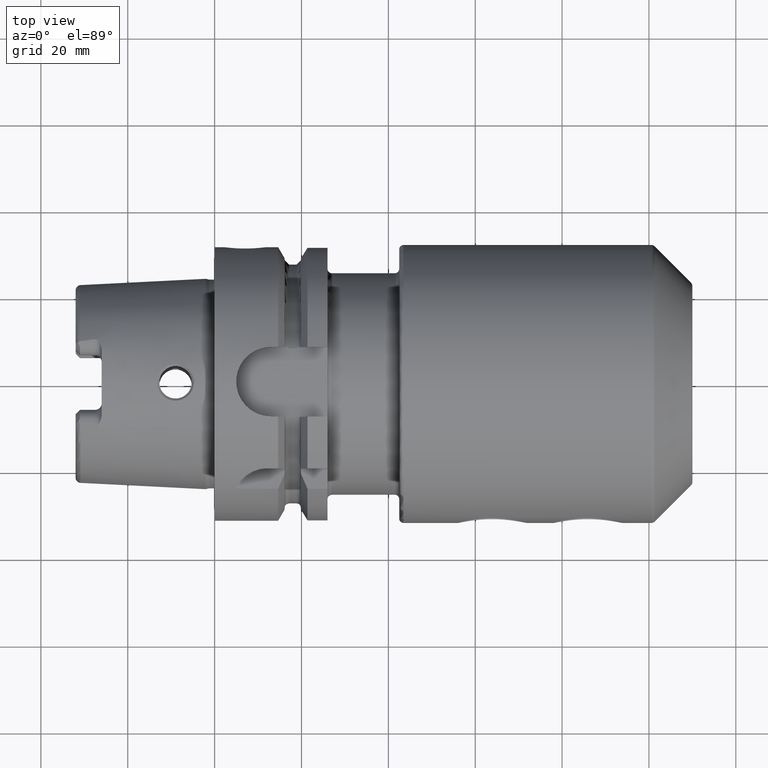
[diagram: clean part render]
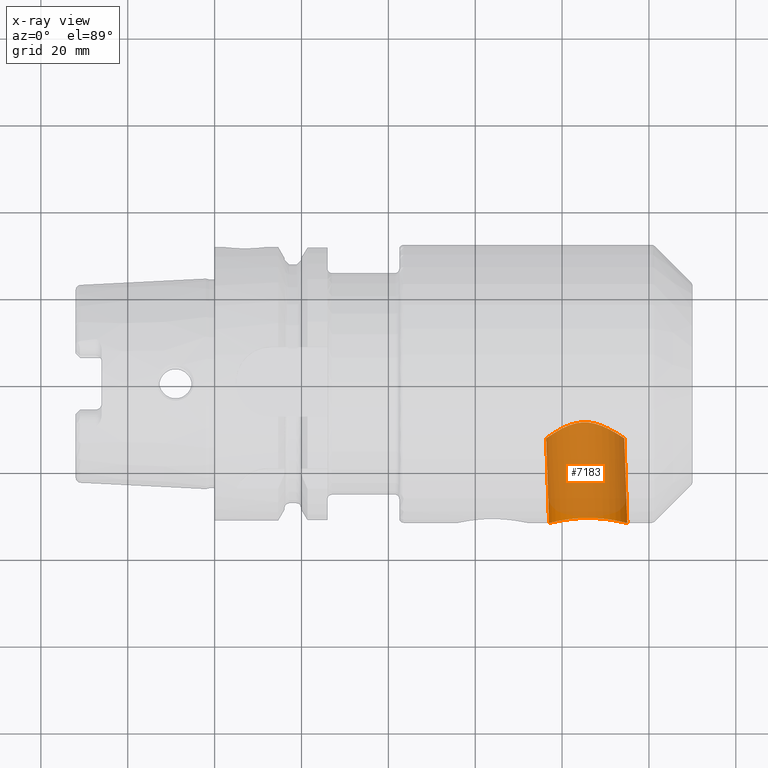
[diagram: x-ray — body ghosted, one internal face saturated and labeled with its STEP entity id]
A machine part, top view, then the same camera in x-ray: the body is ghosted and one INTERNAL B-rep face — a face not visible from any outside direction — is saturated and labeled: STEP entity #7183.
In plain terms, the highlighted cylindrical surface (partial cylindrical patch) has radius 9 mm, axis along (0.0349, -0.9994, 0).
Its self-contained STEP definition (entity closure, byte-faithful):
#7028=CARTESIAN_POINT('',(9.500548589869E1,-3.2E1,0.E0));
#7029=CARTESIAN_POINT('',(9.500548589869E1,-3.2E1,-3.406672840475E-1));
#7030=CARTESIAN_POINT('',(9.496644826616E1,-3.198910011086E1,
-1.023830082639E0));
#7031=CARTESIAN_POINT('',(9.478856147192E1,-3.194002940569E1,
-2.043063266462E0));
#7032=CARTESIAN_POINT('',(9.449413307981E1,-3.186075066449E1,
-3.035842720892E0));
#7033=CARTESIAN_POINT('',(9.408079781537E1,-3.175361780031E1,
-4.000953754429E0));
#7034=CARTESIAN_POINT('',(9.355650676923E1,-3.162475670703E1,
-4.913591806692E0));
#7035=CARTESIAN_POINT('',(9.291933579290E1,-3.147894746400E1,
-5.771248001030E0));
#7036=CARTESIAN_POINT('',(9.218614331762E1,-3.132605080876E1,
-6.547159735889E0));
#7037=CARTESIAN_POINT('',(9.136217803743E1,-3.117355795595E1,
-7.235465733785E0));
#7038=CARTESIAN_POINT('',(9.046753608646E1,-3.103163170444E1,
-7.818959767062E0));
#7039=CARTESIAN_POINT('',(8.951733900167E1,-3.090818805039E1,
-8.291249955882E0));
#7040=CARTESIAN_POINT('',(8.852427741891E1,-3.080979730367E1,
-8.647966672735E0));
#7041=CARTESIAN_POINT('',(8.751026624717E1,-3.074189261830E1,
-8.885192983590E0));
#7042=CARTESIAN_POINT('',(8.647654495718E1,-3.070695489852E1,
-9.004632098273E0));
#7043=CARTESIAN_POINT('',(8.544745205957E1,-3.070673108943E1,
-9.005391434036E0));
#7044=CARTESIAN_POINT('',(8.441872027689E1,-3.074108301192E1,
-8.887977306009E0));
#7045=CARTESIAN_POINT('',(8.341372476993E1,-3.080809818209E1,
-8.653967311897E0));
#7046=CARTESIAN_POINT('',(8.243312444946E1,-3.090517081963E1,
-8.302389038056E0));
#7047=CARTESIAN_POINT('',(8.149603987600E1,-3.102714295757E1,
-7.836578127325E0));
#7048=CARTESIAN_POINT('',(8.061489298803E1,-3.116754773057E1,
-7.261074749846E0));
#7049=CARTESIAN_POINT('',(7.980159265623E1,-3.131911778006E1,
-6.579988126186E0));
#7050=CARTESIAN_POINT('',(7.907648832658E1,-3.147178702820E1,
-5.809960304080E0));
#7051=CARTESIAN_POINT('',(7.844382559633E1,-3.161832872260E1,
-4.954765814137E0));
#7052=CARTESIAN_POINT('',(7.792130244716E1,-3.174863090818E1,
-4.040619616303E0));
#7053=CARTESIAN_POINT('',(7.750794187192E1,-3.185755402930E1,
-3.070031129053E0));
#7054=CARTESIAN_POINT('',(7.721257597170E1,-3.193853922437E1,
-2.067966345985E0));
#7055=CARTESIAN_POINT('',(7.703384335679E1,-3.198879951198E1,
-1.037295690523E0));
#7056=CARTESIAN_POINT('',(7.699451410131E1,-3.2E1,-3.452997055043E-1));
#7057=CARTESIAN_POINT('',(7.699451410131E1,-3.2E1,0.E0));
#7059=CARTESIAN_POINT('',(7.631355909622E1,-1.25E1,0.E0));
#7060=CARTESIAN_POINT('',(7.631355909622E1,-1.25E1,-3.102142201891E-1));
#7061=CARTESIAN_POINT('',(7.634483839575E1,-1.247688006612E1,
-9.338604188292E-1));
#7062=CARTESIAN_POINT('',(7.648841518362E1,-1.237133133422E1,
-1.869232243749E0));
#7063=CARTESIAN_POINT('',(7.672907258256E1,-1.219636000878E1,
-2.792209136387E0));
#7064=CARTESIAN_POINT('',(7.707560796239E1,-1.194888879082E1,
-3.711929794168E0));
#7065=CARTESIAN_POINT('',(7.753334524123E1,-1.163061065817E1,
-4.613471285534E0));
#7066=CARTESIAN_POINT('',(7.810922000250E1,-1.124530593472E1,
-5.485414249016E0));
#7067=CARTESIAN_POINT('',(7.879758412766E1,-1.080929850115E1,
-6.298955767751E0));
#7068=CARTESIAN_POINT('',(7.958049903620E1,-1.035001568612E1,
-7.024795588237E0));
#7069=CARTESIAN_POINT('',(8.042805685708E1,-9.902904369933E0,
-7.638351505607E0));
#7070=CARTESIAN_POINT('',(8.130696244997E1,-9.501130103800E0,
-8.129344640878E0));
#7071=CARTESIAN_POINT('',(8.220559704194E1,-9.163943853302E0,
-8.504920170428E0));
#7072=CARTESIAN_POINT('',(8.308391825931E1,-8.913841754456E0,
-8.764752723856E0));
#7073=CARTESIAN_POINT('',(8.393922204551E1,-8.750492714675E0,
-8.926793293588E0));
#7074=CARTESIAN_POINT('',(8.477819421260E1,-8.670974293596E0,
-9.003581044912E0));
#7075=CARTESIAN_POINT('',(8.560587109998E1,-8.671551351758E0,
-9.003028524346E0));
#7076=CARTESIAN_POINT('',(8.645464296039E1,-8.752807718356E0,
-8.924542261642E0));
#7077=CARTESIAN_POINT('',(8.733162420966E1,-8.920007042866E0,
-8.758568246206E0));
#7078=CARTESIAN_POINT('',(8.824503599405E1,-9.178244557093E0,
-8.489750542455E0));
#7079=CARTESIAN_POINT('',(8.918508691387E1,-9.526641369784E0,
-8.099902846850E0));
#7080=CARTESIAN_POINT('',(9.010442751786E1,-9.939083856195E0,
-7.591829967507E0));
#7081=CARTESIAN_POINT('',(9.098784859620E1,-1.039341475787E1,
-6.961053623760E0));
#7082=CARTESIAN_POINT('',(9.179884953917E1,-1.085432724154E1,
-6.221470627766E0));
#7083=CARTESIAN_POINT('',(9.250641075364E1,-1.128616664274E1,
-5.400813657294E0));
#7084=CARTESIAN_POINT('',(9.309332990354E1,-1.166289642938E1,
-4.530623742787E0));
#7085=CARTESIAN_POINT('',(9.355715925289E1,-1.197126780152E1,
-3.637856663513E0));
#7086=CARTESIAN_POINT('',(9.390663665334E1,-1.220932605955E1,
-2.732871137876E0));
#7087=CARTESIAN_POINT('',(9.414877269105E1,-1.237697341322E1,
-1.828095680866E0));
#7088=CARTESIAN_POINT('',(9.429309265738E1,-1.247790462231E1,
-9.130090006585E-1));
#7089=CARTESIAN_POINT('',(9.432453089360E1,-1.25E1,-3.032457919609E-1));
#7090=CARTESIAN_POINT('',(9.432453089360E1,-1.25E1,0.E0));
#7123=DIRECTION('',(-3.489949670250E-2,9.993908270191E-1,0.E0));
#7124=VECTOR('',#7123,1.951188611383E1);
#7125=CARTESIAN_POINT('',(9.500548589869E1,-3.2E1,0.E0));
#7126=LINE('',#7125,#7124);
#7160=DIRECTION('',(-3.489949670250E-2,9.993908270191E-1,0.E0));
#7161=VECTOR('',#7160,1.951188611383E1);
#7162=CARTESIAN_POINT('',(7.699451410131E1,-3.2E1,0.E0));
#7163=LINE('',#7162,#7161);
#7164=VERTEX_POINT('',#7057);
#7165=VERTEX_POINT('',#7028);
#7166=VERTEX_POINT('',#7090);
#7167=VERTEX_POINT('',#7059);
#7168=CARTESIAN_POINT('',(8.486935300637E1,3.774936831468E-1,0.E0));
#7169=DIRECTION('',(3.489949670250E-2,-9.993908270191E-1,0.E0));
#7170=DIRECTION('',(-9.993908270191E-1,-3.489949670250E-2,0.E0));
#7171=AXIS2_PLACEMENT_3D('',#7168,#7169,#7170);
#7172=CYLINDRICAL_SURFACE('',#7171,9.E0);
#7174=ORIENTED_EDGE('',*,*,#7173,.T.);
#7176=ORIENTED_EDGE('',*,*,#7175,.T.);
#7178=ORIENTED_EDGE('',*,*,#7177,.T.);
#7180=ORIENTED_EDGE('',*,*,#7179,.F.);
#7181=EDGE_LOOP('',(#7174,#7176,#7178,#7180));
#7182=FACE_OUTER_BOUND('',#7181,.F.);
#7183=ADVANCED_FACE('',(#7182),#7172,.F.);
#7058=B_SPLINE_CURVE_WITH_KNOTS('',3,(#7028,#7029,#7030,#7031,#7032,#7033,#7034,
#7035,#7036,#7037,#7038,#7039,#7040,#7041,#7042,#7043,#7044,#7045,#7046,#7047,
#7048,#7049,#7050,#7051,#7052,#7053,#7054,#7055,#7056,#7057),.UNSPECIFIED.,.F.,
.F.,(4,1,1,1,1,1,1,1,1,1,1,1,1,1,1,1,1,1,1,1,1,1,1,1,1,1,1,4),(0.E0,
3.703703703704E-2,7.407407407407E-2,1.111111111111E-1,1.481481481481E-1,
1.851851851852E-1,2.222222222222E-1,2.592592592593E-1,2.962962962963E-1,
3.333333333333E-1,3.703703703704E-1,4.074074074074E-1,4.444444444444E-1,
4.814814814815E-1,5.185185185185E-1,5.555555555556E-1,5.925925925926E-1,
6.296296296296E-1,6.666666666667E-1,7.037037037037E-1,7.407407407407E-1,
7.777777777778E-1,8.148148148148E-1,8.518518518519E-1,8.888888888889E-1,
9.259259259259E-1,9.629629629630E-1,1.E0),.UNSPECIFIED.);
#7091=B_SPLINE_CURVE_WITH_KNOTS('',3,(#7059,#7060,#7061,#7062,#7063,#7064,#7065,
#7066,#7067,#7068,#7069,#7070,#7071,#7072,#7073,#7074,#7075,#7076,#7077,#7078,
#7079,#7080,#7081,#7082,#7083,#7084,#7085,#7086,#7087,#7088,#7089,#7090),
.UNSPECIFIED.,.F.,.F.,(4,1,1,1,1,1,1,1,1,1,1,1,1,1,1,1,1,1,1,1,1,1,1,1,1,1,1,1,
1,4),(0.E0,3.448275862069E-2,6.896551724138E-2,1.034482758621E-1,
1.379310344828E-1,1.724137931034E-1,2.068965517241E-1,2.413793103448E-1,
2.758620689655E-1,3.103448275862E-1,3.448275862069E-1,3.793103448276E-1,
4.137931034483E-1,4.482758620690E-1,4.827586206897E-1,5.172413793103E-1,
5.517241379310E-1,5.862068965517E-1,6.206896551724E-1,6.551724137931E-1,
6.896551724138E-1,7.241379310345E-1,7.586206896552E-1,7.931034482759E-1,
8.275862068966E-1,8.620689655172E-1,8.965517241379E-1,9.310344827586E-1,
9.655172413793E-1,1.E0),.UNSPECIFIED.);
#7173=EDGE_CURVE('',#7165,#7164,#7058,.T.);
#7175=EDGE_CURVE('',#7164,#7167,#7163,.T.);
#7177=EDGE_CURVE('',#7167,#7166,#7091,.T.);
#7179=EDGE_CURVE('',#7165,#7166,#7126,.T.);